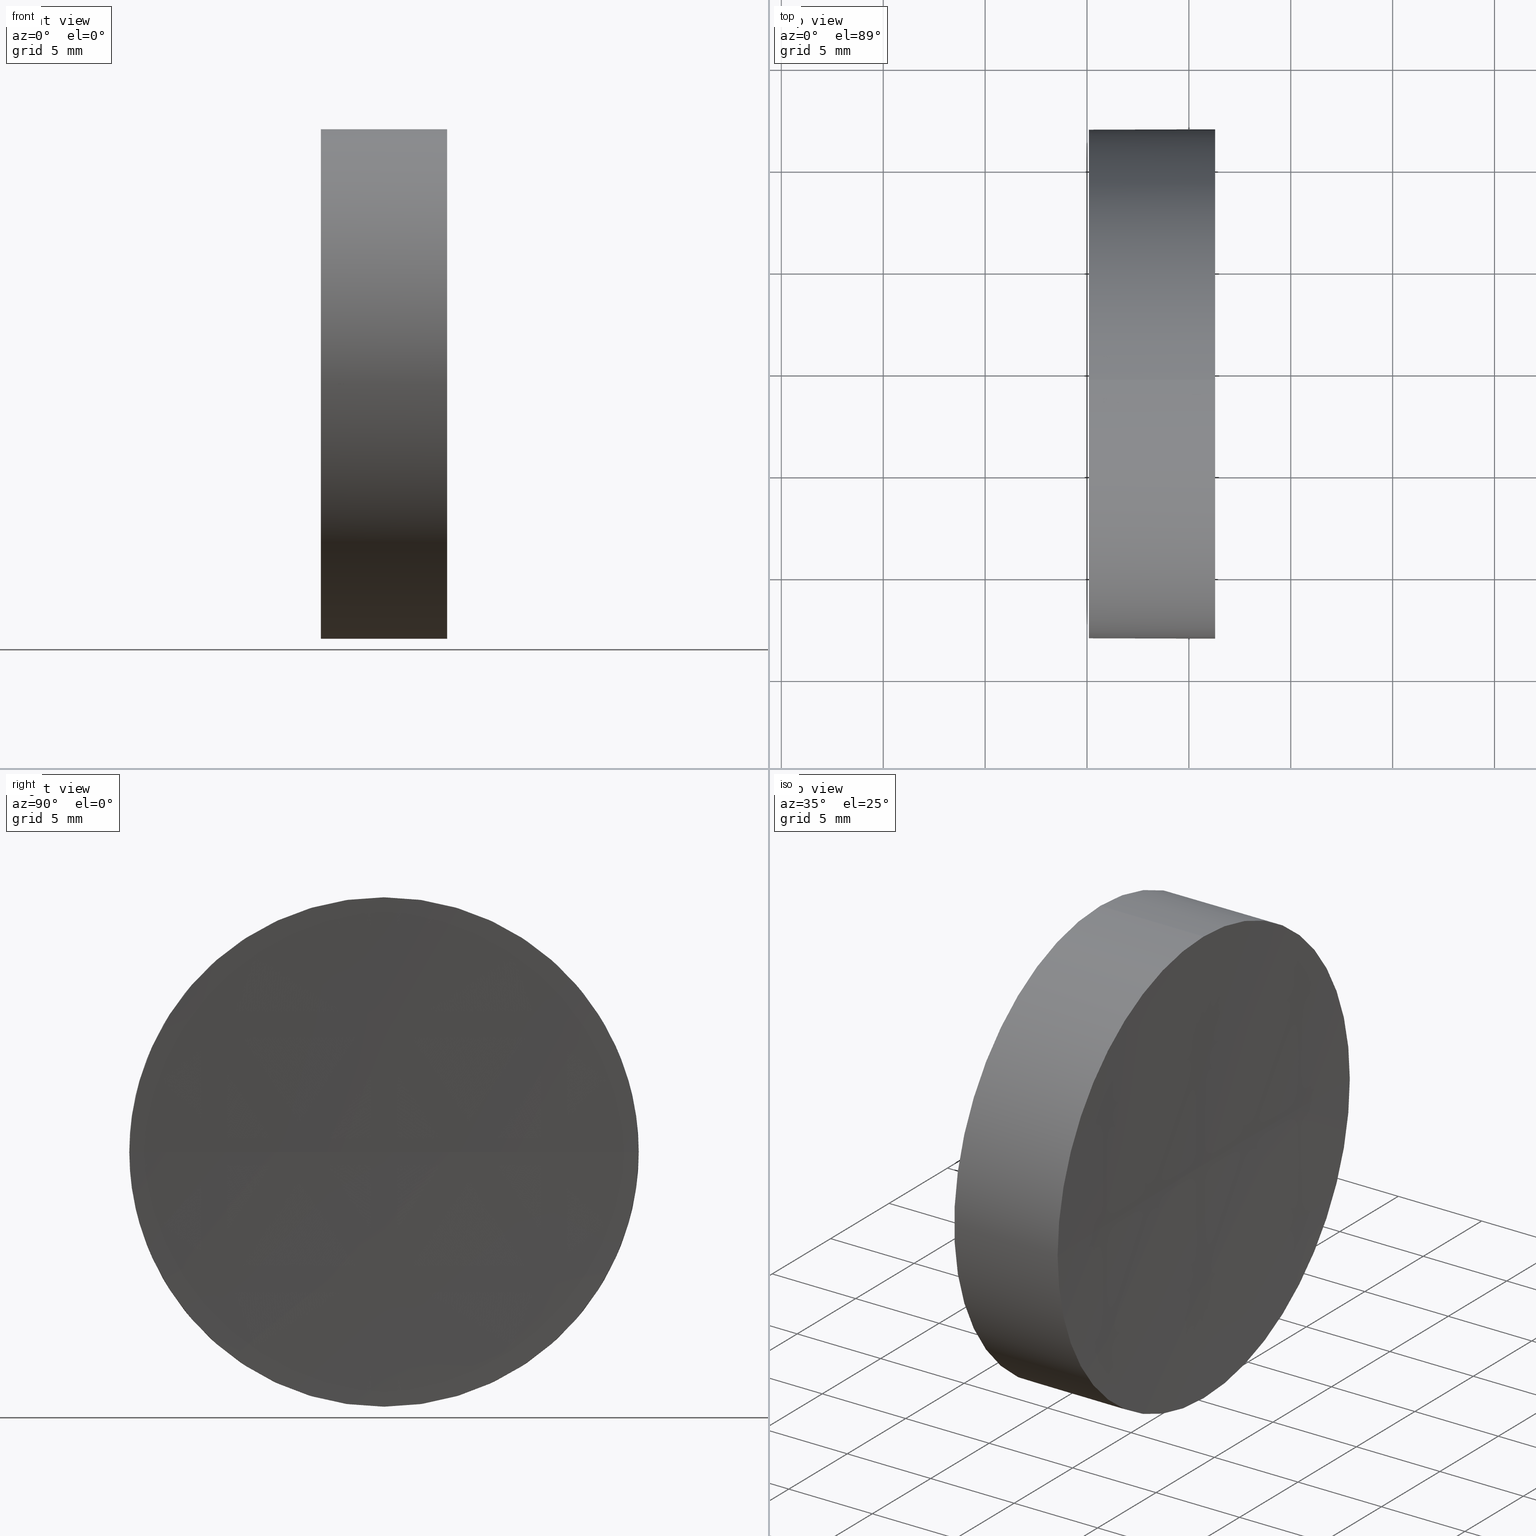
[diagram: canonical four-view strip — front | top / right | iso, engineering-drawing reading convention]
A machine part, canonical four-view strip (front | top / right | iso — engineering-drawing reading convention). The complete STEP part file that produces these views, byte-faithful:
ISO-10303-21;
HEADER;
FILE_DESCRIPTION (( 'STEP AP214' ),
    '1' );
FILE_NAME ('270029.STEP',
    '2019-07-22T07:24:31',
    ( '' ),
    ( '' ),
    'SwSTEP 2.0',
    'SolidWorks 2016',
    '' );
FILE_SCHEMA (( 'AUTOMOTIVE_DESIGN' ));
ENDSEC;

DATA;
#1 = ORIENTED_EDGE ( 'NONE', *, *, #164, .T. ) ;
#2 = CARTESIAN_POINT ( 'NONE',  ( 115.0926555349195200, 69.37802112337243400, 0.0000000000000000000 ) ) ;
#3 =( NAMED_UNIT ( * ) PLANE_ANGLE_UNIT ( ) SI_UNIT ( $, .RADIAN. ) );
#4 = CARTESIAN_POINT ( 'NONE',  ( 121.2880157473268800, 69.37802112337243400, 0.0000000000000000000 ) ) ;
#5 = APPLICATION_PROTOCOL_DEFINITION ( 'draft international standard', 'automotive_design', 1998, #15 ) ;
#6 = CARTESIAN_POINT ( 'NONE',  ( 108.9851430021651000, 69.37802112337243400, -12.50000000000001100 ) ) ;
#7 = CARTESIAN_POINT ( 'NONE',  ( 108.9851430021651000, 69.37802112337243400, 12.50000000000001100 ) ) ;
#8 = AXIS2_PLACEMENT_3D ( 'NONE', #123, #171, #175 ) ;
#9 = DIRECTION ( 'NONE',  ( -1.000000000000000000, -0.0000000000000000000, -0.0000000000000000000 ) ) ;
#10 = CARTESIAN_POINT ( 'NONE',  ( 121.2880157473268800, 69.37802112337243400, -12.50000000000002500 ) ) ;
#11 = PRESENTATION_LAYER_ASSIGNMENT (  '', '', ( #86 ) ) ;
#12 = ORIENTED_EDGE ( 'NONE', *, *, #47, .F. ) ;
#13 = AXIS2_PLACEMENT_3D ( 'NONE', #73, #41, #141 ) ;
#14 = CARTESIAN_POINT ( 'NONE',  ( 121.2880157473269200, 56.87802112337199400, 0.0000000000000000000 ) ) ;
#15 = APPLICATION_CONTEXT ( 'automotive_design' ) ;
#16 = ORIENTED_EDGE ( 'NONE', *, *, #26, .T. ) ;
#17 = DIRECTION ( 'NONE',  ( -1.000000000000000000, -0.0000000000000000000, -0.0000000000000000000 ) ) ;
#18 = SHAPE_DEFINITION_REPRESENTATION ( #25, #46 ) ;
#19 = VECTOR ( 'NONE', #17, 1000.000000000000000 ) ;
#20 = ORIENTED_EDGE ( 'NONE', *, *, #131, .F. ) ;
#21 = ORIENTED_EDGE ( 'NONE', *, *, #119, .T. ) ;
#22 = ADVANCED_FACE ( 'NONE', ( #28 ), #39, .T. ) ;
#23 = COLOUR_RGB ( '',1.000000000000000000, 1.000000000000000000, 1.000000000000000000 ) ;
#24 = AXIS2_PLACEMENT_3D ( 'NONE', #2, #67, #158 ) ;
#25 = PRODUCT_DEFINITION_SHAPE ( 'NONE', 'NONE',  #154 ) ;
#26 = EDGE_CURVE ( 'NONE', #68, #136, #142, .T. ) ;
#27 = CIRCLE ( 'NONE', #132, 400.0000000000000000 ) ;
#28 = FACE_OUTER_BOUND ( 'NONE', #77, .T. ) ;
#29 = DIRECTION ( 'NONE',  ( 0.0000000000000000000, 0.0000000000000000000, 1.000000000000000000 ) ) ;
#30 = DIRECTION ( 'NONE',  ( 0.0000000000000000000, 0.0000000000000000000, 1.000000000000000000 ) ) ;
#31 = ORIENTED_EDGE ( 'NONE', *, *, #26, .F. ) ;
#32 =( NAMED_UNIT ( * ) PLANE_ANGLE_UNIT ( ) SI_UNIT ( $, .RADIAN. ) );
#33 = CARTESIAN_POINT ( 'NONE',  ( 521.0926555403137900, 69.37802112337254800, 0.0000000000000000000 ) ) ;
#34 = FACE_OUTER_BOUND ( 'NONE', #64, .T. ) ;
#35 = FACE_OUTER_BOUND ( 'NONE', #128, .T. ) ;
#36 =( NAMED_UNIT ( * ) SI_UNIT ( $, .STERADIAN. ) SOLID_ANGLE_UNIT ( ) );
#37 = SURFACE_SIDE_STYLE ('',( #130 ) ) ;
#38 = ORIENTED_EDGE ( 'NONE', *, *, #176, .T. ) ;
#39 = CYLINDRICAL_SURFACE ( 'NONE', #162, 12.50000000000001100 ) ;
#40 = PRESENTATION_LAYER_ASSIGNMENT (  '', '', ( #144 ) ) ;
#41 = DIRECTION ( 'NONE',  ( -1.000000000000000000, -0.0000000000000000000, -0.0000000000000000000 ) ) ;
#42 = AXIS2_PLACEMENT_3D ( 'NONE', #156, #71, #129 ) ;
#43 = SURFACE_SIDE_STYLE ('',( #76 ) ) ;
#44 = DIRECTION ( 'NONE',  ( -1.000000000000000000, 0.0000000000000000000, 0.0000000000000000000 ) ) ;
#45 = ORIENTED_EDGE ( 'NONE', *, *, #161, .T. ) ;
#46 = ADVANCED_BREP_SHAPE_REPRESENTATION ( '270029', ( #181, #120 ), #108 ) ;
#47 = EDGE_CURVE ( 'NONE', #138, #60, #78, .T. ) ;
#48 = CARTESIAN_POINT ( 'NONE',  ( 115.0926555349195200, 69.37802112337243400, 12.49999999999999600 ) ) ;
#49 = SURFACE_STYLE_USAGE ( .BOTH. , #37 ) ;
#50 = CARTESIAN_POINT ( 'NONE',  ( 108.9851430021651000, 69.37802112337243400, 0.0000000000000000000 ) ) ;
#51 = AXIS2_PLACEMENT_3D ( 'NONE', #33, #30, #143 ) ;
#52 = ORIENTED_EDGE ( 'NONE', *, *, #47, .T. ) ;
#53 = EDGE_CURVE ( 'NONE', #180, #68, #185, .T. ) ;
#54 = CIRCLE ( 'NONE', #42, 12.50000000000002500 ) ;
#55 = DIRECTION ( 'NONE',  ( 0.0000000000000000000, 0.0000000000000000000, 1.000000000000000000 ) ) ;
#56 = ORIENTED_EDGE ( 'NONE', *, *, #161, .F. ) ;
#57 = DIRECTION ( 'NONE',  ( 0.0000000000000000000, 0.0000000000000000000, 1.000000000000000000 ) ) ;
#58 = CARTESIAN_POINT ( 'NONE',  ( 108.9851430021651000, 69.37802112337243400, 0.0000000000000000000 ) ) ;
#59 = AXIS2_PLACEMENT_3D ( 'NONE', #69, #126, #29 ) ;
#60 = VERTEX_POINT ( 'NONE', #146 ) ;
#61 =( LENGTH_UNIT ( ) NAMED_UNIT ( * ) SI_UNIT ( .MILLI., .METRE. ) );
#62 = FACE_OUTER_BOUND ( 'NONE', #112, .T. ) ;
#63 = ORIENTED_EDGE ( 'NONE', *, *, #164, .F. ) ;
#64 = EDGE_LOOP ( 'NONE', ( #45, #16 ) ) ;
#65 = AXIS2_PLACEMENT_3D ( 'NONE', #58, #85, #55 ) ;
#66 = ORIENTED_EDGE ( 'NONE', *, *, #122, .T. ) ;
#67 = DIRECTION ( 'NONE',  ( 1.000000000000000000, 0.0000000000000000000, 0.0000000000000000000 ) ) ;
#68 = VERTEX_POINT ( 'NONE', #81 ) ;
#69 = CARTESIAN_POINT ( 'NONE',  ( 115.0926555349195200, 69.37802112337243400, 0.0000000000000000000 ) ) ;
#70 = AXIS2_PLACEMENT_3D ( 'NONE', #4, #75, #101 ) ;
#71 = DIRECTION ( 'NONE',  ( -1.000000000000000000, -0.0000000000000000000, -0.0000000000000000000 ) ) ;
#72 = DIRECTION ( 'NONE',  ( 0.0000000000000000000, 0.0000000000000000000, 1.000000000000000000 ) ) ;
#73 = CARTESIAN_POINT ( 'NONE',  ( 121.2880157473268800, 69.37802112337243400, 0.0000000000000000000 ) ) ;
#74 = ORIENTED_EDGE ( 'NONE', *, *, #53, .T. ) ;
#75 = DIRECTION ( 'NONE',  ( -1.000000000000000000, -0.0000000000000000000, -0.0000000000000000000 ) ) ;
#76 = SURFACE_STYLE_FILL_AREA ( #89 ) ;
#77 = EDGE_LOOP ( 'NONE', ( #96, #74, #56, #20, #21 ) ) ;
#78 = CIRCLE ( 'NONE', #184, 400.0000000000000000 ) ;
#79 = UNCERTAINTY_MEASURE_WITH_UNIT (LENGTH_MEASURE( 1.000000000000000100E-005 ), #114, 'distance_accuracy_value', 'NONE');
#80 = VERTEX_POINT ( 'NONE', #124 ) ;
#81 = CARTESIAN_POINT ( 'NONE',  ( 115.0926555349195200, 69.37802112337243400, -12.49999999999999600 ) ) ;
#82 = DIRECTION ( 'NONE',  ( 0.0000000000000000000, -1.224646799147353200E-016, 1.000000000000000000 ) ) ;
#83 = COLOUR_RGB ( '',1.000000000000000000, 1.000000000000000000, 1.000000000000000000 ) ;
#84 = ORIENTED_EDGE ( 'NONE', *, *, #122, .F. ) ;
#85 = DIRECTION ( 'NONE',  ( -1.000000000000000000, -0.0000000000000000000, -0.0000000000000000000 ) ) ;
#86 = STYLED_ITEM ( 'NONE', ( #91 ), #46 ) ;
#87 = SURFACE_STYLE_USAGE ( .BOTH. , #43 ) ;
#88 = DIRECTION ( 'NONE',  ( -1.000000000000000000, -0.0000000000000000000, -0.0000000000000000000 ) ) ;
#89 = FILL_AREA_STYLE ('',( #125 ) ) ;
#90 = CARTESIAN_POINT ( 'NONE',  ( 521.0926555403137900, 69.37802112337254800, 0.0000000000000000000 ) ) ;
#91 = PRESENTATION_STYLE_ASSIGNMENT (( #87 ) ) ;
#92 = ADVANCED_FACE ( 'NONE', ( #35 ), #106, .F. ) ;
#93 = CARTESIAN_POINT ( 'NONE',  ( 121.2880157473269200, 81.87802112337300300, 1.530808498934246700E-015 ) ) ;
#94 = ADVANCED_FACE ( 'NONE', ( #34 ), #160, .F. ) ;
#95 = CIRCLE ( 'NONE', #170, 12.50000000000002500 ) ;
#96 = ORIENTED_EDGE ( 'NONE', *, *, #155, .T. ) ;
#97 = PRODUCT_DEFINITION_CONTEXT ( 'detailed design', #157, 'design' ) ;
#98 = CARTESIAN_POINT ( 'NONE',  ( 121.2880157473268800, 69.37802112337243400, 0.0000000000000000000 ) ) ;
#99 = APPLICATION_PROTOCOL_DEFINITION ( 'draft international standard', 'automotive_design', 1998, #157 ) ;
#100 =( NAMED_UNIT ( * ) SI_UNIT ( $, .STERADIAN. ) SOLID_ANGLE_UNIT ( ) );
#101 = DIRECTION ( 'NONE',  ( 0.0000000000000000000, 0.0000000000000000000, 1.000000000000000000 ) ) ;
#102 = ORIENTED_EDGE ( 'NONE', *, *, #155, .F. ) ;
#103 = DIRECTION ( 'NONE',  ( 0.0000000000000000000, 0.0000000000000000000, 1.000000000000000000 ) ) ;
#104 = DIRECTION ( 'NONE',  ( 0.0000000000000000000, -1.000000000000000000, 0.0000000000000000000 ) ) ;
#105 = CIRCLE ( 'NONE', #13, 12.50000000000002500 ) ;
#106 = SPHERICAL_SURFACE ( 'NONE', #153, 400.0000000000000000 ) ;
#107 = PRODUCT_RELATED_PRODUCT_CATEGORY ( 'part', '', ( #121 ) ) ;
#108 =( GEOMETRIC_REPRESENTATION_CONTEXT ( 3 ) GLOBAL_UNCERTAINTY_ASSIGNED_CONTEXT ( ( #147 ) ) GLOBAL_UNIT_ASSIGNED_CONTEXT ( ( #61, #32, #100 ) ) REPRESENTATION_CONTEXT ( 'NONE', 'WORKASPACE' ) );
#109 = FILL_AREA_STYLE_COLOUR ( '', #23 ) ;
#110 = EDGE_LOOP ( 'NONE', ( #150, #168, #84, #52 ) ) ;
#111 = UNCERTAINTY_MEASURE_WITH_UNIT (LENGTH_MEASURE( 1.000000000000000100E-005 ), #134, 'distance_accuracy_value', 'NONE');
#112 = EDGE_LOOP ( 'NONE', ( #140, #1, #66, #152, #31 ) ) ;
#113 = MECHANICAL_DESIGN_GEOMETRIC_PRESENTATION_REPRESENTATION (  '', ( #86 ), #115 ) ;
#114 =( LENGTH_UNIT ( ) NAMED_UNIT ( * ) SI_UNIT ( .MILLI., .METRE. ) );
#115 =( GEOMETRIC_REPRESENTATION_CONTEXT ( 3 ) GLOBAL_UNCERTAINTY_ASSIGNED_CONTEXT ( ( #79 ) ) GLOBAL_UNIT_ASSIGNED_CONTEXT ( ( #114, #3, #145 ) ) REPRESENTATION_CONTEXT ( 'NONE', 'WORKASPACE' ) );
#116 = DIRECTION ( 'NONE',  ( 0.0000000000000000000, 0.0000000000000000000, -1.000000000000000000 ) ) ;
#117 = DIRECTION ( 'NONE',  ( 0.0000000000000000000, 0.0000000000000000000, 1.000000000000000000 ) ) ;
#118 = FILL_AREA_STYLE ('',( #109 ) ) ;
#119 = EDGE_CURVE ( 'NONE', #80, #186, #95, .T. ) ;
#120 = AXIS2_PLACEMENT_3D ( 'NONE', #159, #72, #174 ) ;
#121 = PRODUCT ( '270029', '270029', '', ( #172 ) ) ;
#122 = EDGE_CURVE ( 'NONE', #138, #80, #105, .T. ) ;
#123 = CARTESIAN_POINT ( 'NONE',  ( 115.0926555349195200, 69.37802112337243400, 0.0000000000000000000 ) ) ;
#124 = CARTESIAN_POINT ( 'NONE',  ( 121.2880157473268800, 69.37802112337243400, 12.50000000000002500 ) ) ;
#125 = FILL_AREA_STYLE_COLOUR ( '', #83 ) ;
#126 = DIRECTION ( 'NONE',  ( -1.000000000000000000, -0.0000000000000000000, -0.0000000000000000000 ) ) ;
#127 = DIRECTION ( 'NONE',  ( -1.000000000000000000, -0.0000000000000000000, -0.0000000000000000000 ) ) ;
#128 = EDGE_LOOP ( 'NONE', ( #102, #38, #12, #63 ) ) ;
#129 = DIRECTION ( 'NONE',  ( 0.0000000000000000000, 0.0000000000000000000, 1.000000000000000000 ) ) ;
#130 = SURFACE_STYLE_FILL_AREA ( #118 ) ;
#131 = EDGE_CURVE ( 'NONE', #80, #136, #167, .T. ) ;
#132 = AXIS2_PLACEMENT_3D ( 'NONE', #166, #82, #182 ) ;
#133 = ADVANCED_FACE ( 'NONE', ( #183 ), #177, .F. ) ;
#134 =( LENGTH_UNIT ( ) NAMED_UNIT ( * ) SI_UNIT ( .MILLI., .METRE. ) );
#135 = CIRCLE ( 'NONE', #59, 12.49999999999999600 ) ;
#136 = VERTEX_POINT ( 'NONE', #48 ) ;
#137 = PRESENTATION_STYLE_ASSIGNMENT (( #49 ) ) ;
#138 = VERTEX_POINT ( 'NONE', #14 ) ;
#139 = CIRCLE ( 'NONE', #70, 12.50000000000002500 ) ;
#140 = ORIENTED_EDGE ( 'NONE', *, *, #53, .F. ) ;
#141 = DIRECTION ( 'NONE',  ( 0.0000000000000000000, 0.0000000000000000000, 1.000000000000000000 ) ) ;
#142 = CIRCLE ( 'NONE', #8, 12.49999999999999600 ) ;
#143 = DIRECTION ( 'NONE',  ( 0.0000000000000000000, -1.000000000000000000, 0.0000000000000000000 ) ) ;
#144 = STYLED_ITEM ( 'NONE', ( #137 ), #181 ) ;
#145 =( NAMED_UNIT ( * ) SI_UNIT ( $, .STERADIAN. ) SOLID_ANGLE_UNIT ( ) );
#146 = CARTESIAN_POINT ( 'NONE',  ( 121.0926555403137900, 69.37802112337252000, 0.0000000000000000000 ) ) ;
#147 = UNCERTAINTY_MEASURE_WITH_UNIT (LENGTH_MEASURE( 1.000000000000000100E-005 ), #61, 'distance_accuracy_value', 'NONE');
#148 = CARTESIAN_POINT ( 'NONE',  ( 521.0926555403137900, 69.37802112337254800, 0.0000000000000000000 ) ) ;
#149 =( GEOMETRIC_REPRESENTATION_CONTEXT ( 3 ) GLOBAL_UNCERTAINTY_ASSIGNED_CONTEXT ( ( #111 ) ) GLOBAL_UNIT_ASSIGNED_CONTEXT ( ( #134, #151, #36 ) ) REPRESENTATION_CONTEXT ( 'NONE', 'WORKASPACE' ) );
#150 = ORIENTED_EDGE ( 'NONE', *, *, #176, .F. ) ;
#151 =( NAMED_UNIT ( * ) PLANE_ANGLE_UNIT ( ) SI_UNIT ( $, .RADIAN. ) );
#152 = ORIENTED_EDGE ( 'NONE', *, *, #131, .T. ) ;
#153 = AXIS2_PLACEMENT_3D ( 'NONE', #148, #103, #104 ) ;
#154 = PRODUCT_DEFINITION ( 'δ֪', '', #163, #97 ) ;
#155 = EDGE_CURVE ( 'NONE', #186, #180, #54, .T. ) ;
#156 = CARTESIAN_POINT ( 'NONE',  ( 121.2880157473268800, 69.37802112337243400, 0.0000000000000000000 ) ) ;
#157 = APPLICATION_CONTEXT ( 'automotive_design' ) ;
#158 = DIRECTION ( 'NONE',  ( 0.0000000000000000000, 0.0000000000000000000, -1.000000000000000000 ) ) ;
#159 = CARTESIAN_POINT ( 'NONE',  ( 0.0000000000000000000, 0.0000000000000000000, 0.0000000000000000000 ) ) ;
#160 = PLANE ( 'NONE',  #24 ) ;
#161 = EDGE_CURVE ( 'NONE', #136, #68, #135, .T. ) ;
#162 = AXIS2_PLACEMENT_3D ( 'NONE', #50, #9, #117 ) ;
#163 = PRODUCT_DEFINITION_FORMATION_WITH_SPECIFIED_SOURCE ( '�κ�', '', #121, .NOT_KNOWN. ) ;
#164 = EDGE_CURVE ( 'NONE', #180, #138, #139, .T. ) ;
#165 = ADVANCED_FACE ( 'NONE', ( #62 ), #169, .T. ) ;
#166 = CARTESIAN_POINT ( 'NONE',  ( 521.0926555403137900, 69.37802112337254800, 0.0000000000000000000 ) ) ;
#167 = LINE ( 'NONE', #7, #19 ) ;
#168 = ORIENTED_EDGE ( 'NONE', *, *, #119, .F. ) ;
#169 = CYLINDRICAL_SURFACE ( 'NONE', #65, 12.50000000000001100 ) ;
#170 = AXIS2_PLACEMENT_3D ( 'NONE', #98, #88, #57 ) ;
#171 = DIRECTION ( 'NONE',  ( -1.000000000000000000, -0.0000000000000000000, -0.0000000000000000000 ) ) ;
#172 = PRODUCT_CONTEXT ( 'NONE', #15, 'mechanical' ) ;
#173 = MECHANICAL_DESIGN_GEOMETRIC_PRESENTATION_REPRESENTATION (  '', ( #144 ), #149 ) ;
#174 = DIRECTION ( 'NONE',  ( 1.000000000000000000, 0.0000000000000000000, 0.0000000000000000000 ) ) ;
#175 = DIRECTION ( 'NONE',  ( 0.0000000000000000000, 0.0000000000000000000, 1.000000000000000000 ) ) ;
#176 = EDGE_CURVE ( 'NONE', #186, #60, #27, .T. ) ;
#177 = SPHERICAL_SURFACE ( 'NONE', #51, 400.0000000000000000 ) ;
#178 = CLOSED_SHELL ( 'NONE', ( #22, #92, #133, #165, #94 ) ) ;
#179 = VECTOR ( 'NONE', #127, 1000.000000000000000 ) ;
#180 = VERTEX_POINT ( 'NONE', #10 ) ;
#181 = MANIFOLD_SOLID_BREP ( '��ת1', #178 ) ;
#182 = DIRECTION ( 'NONE',  ( 0.0000000000000000000, -1.000000000000000000, -1.224646799147353200E-016 ) ) ;
#183 = FACE_OUTER_BOUND ( 'NONE', #110, .T. ) ;
#184 = AXIS2_PLACEMENT_3D ( 'NONE', #90, #116, #44 ) ;
#185 = LINE ( 'NONE', #6, #179 ) ;
#186 = VERTEX_POINT ( 'NONE', #93 ) ;
ENDSEC;
END-ISO-10303-21;
